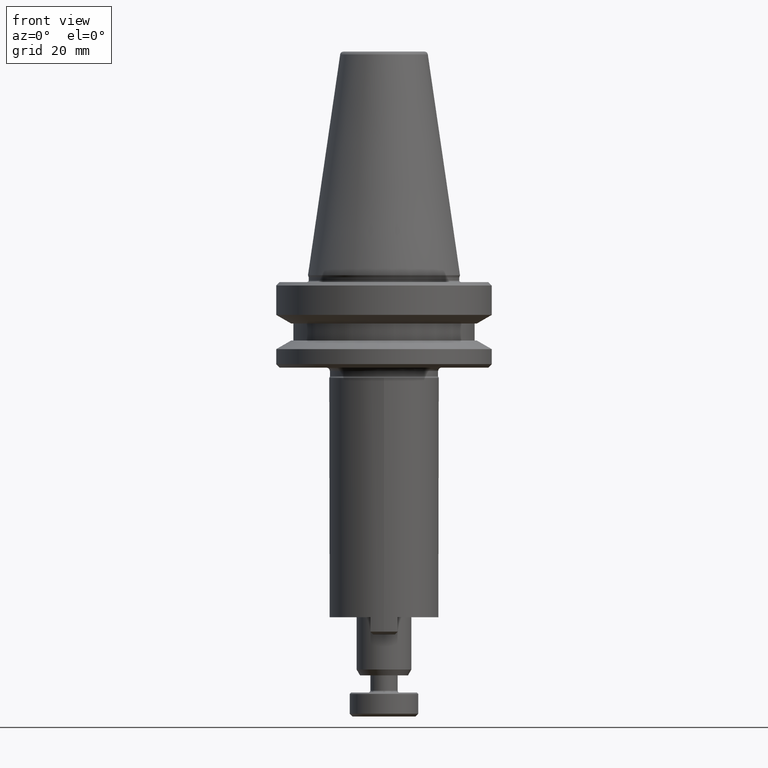
[diagram: clean part render]
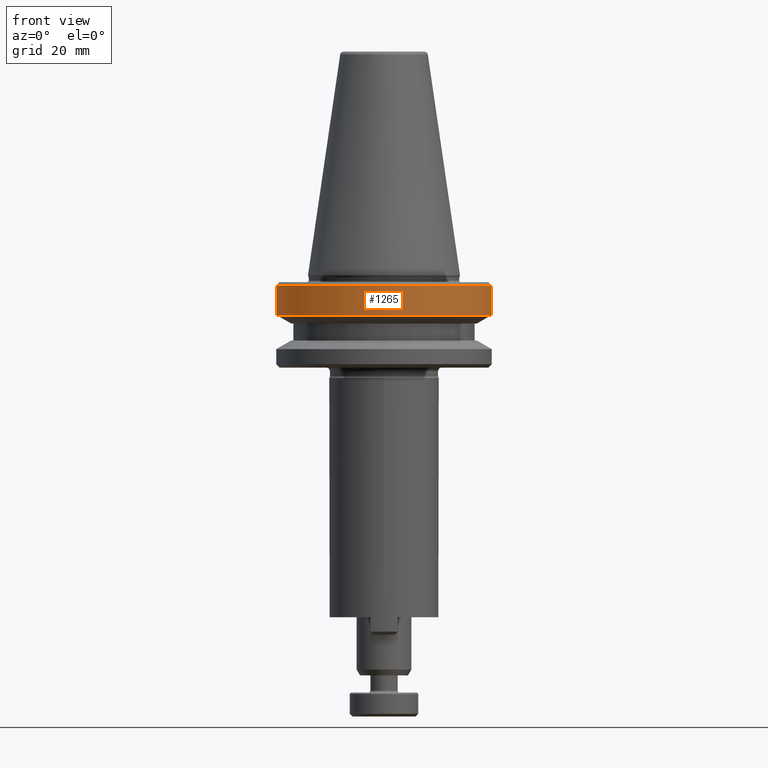
[diagram: same view with one face highlighted and labeled with its STEP entity id]
A machine part, front view. The second image highlights one B-rep face of the part: STEP entity #1265.
In plain terms, the highlighted cylindrical surface (partial cylindrical patch) has radius 31.5 mm, axis along (-0, -0, -1).
Its self-contained STEP definition (entity closure, byte-faithful):
#47 = DIRECTION ( 'NONE',  ( -0.0000000000000000000, -0.0000000000000000000, -1.000000000000000000 ) ) ;
#66 = CARTESIAN_POINT ( 'NONE',  ( 103.6964639303010100, 110.6694344999690100, -1.638959004981580800 ) ) ;
#154 = EDGE_LOOP ( 'NONE', ( #1866, #1949, #1252, #1196 ) ) ;
#247 = EDGE_CURVE ( 'NONE', #388, #427, #1482, .T. ) ;
#258 = DIRECTION ( 'NONE',  ( -0.0000000000000000000, -0.0000000000000000000, -1.000000000000000000 ) ) ;
#388 = VERTEX_POINT ( 'NONE', #584 ) ;
#427 = VERTEX_POINT ( 'NONE', #1208 ) ;
#485 = VECTOR ( 'NONE', #258, 1000.000000000000000 ) ;
#507 = CARTESIAN_POINT ( 'NONE',  ( 72.19646393566456800, 110.6694344999690100, -1.638959004981580800 ) ) ;
#528 = EDGE_CURVE ( 'NONE', #388, #814, #2287, .T. ) ;
#542 = DIRECTION ( 'NONE',  ( -1.000000000000000000, 0.0000000000000000000, 0.0000000000000000000 ) ) ;
#584 = CARTESIAN_POINT ( 'NONE',  ( 135.1964639249374600, 110.6694344999690100, 124.3610409950168600 ) ) ;
#585 = DIRECTION ( 'NONE',  ( -0.0000000000000000000, -0.0000000000000000000, -1.000000000000000000 ) ) ;
#814 = VERTEX_POINT ( 'NONE', #1848 ) ;
#966 = VERTEX_POINT ( 'NONE', #1374 ) ;
#1034 = DIRECTION ( 'NONE',  ( -0.0000000000000000000, -0.0000000000000000000, -1.000000000000000000 ) ) ;
#1039 = EDGE_CURVE ( 'NONE', #814, #966, #1771, .T. ) ;
#1093 = DIRECTION ( 'NONE',  ( -1.000000000000000000, 0.0000000000000000000, 0.0000000000000000000 ) ) ;
#1196 = ORIENTED_EDGE ( 'NONE', *, *, #1756, .F. ) ;
#1208 = CARTESIAN_POINT ( 'NONE',  ( 135.1964639249374600, 110.6694344999690100, 115.7611830013336300 ) ) ;
#1220 = CIRCLE ( 'NONE', #1776, 31.49999999463644300 ) ;
#1252 = ORIENTED_EDGE ( 'NONE', *, *, #1039, .T. ) ;
#1265 = ADVANCED_FACE ( 'NONE', ( #1499 ), #1746, .T. ) ;
#1301 = VECTOR ( 'NONE', #1034, 1000.000000000000000 ) ;
#1374 = CARTESIAN_POINT ( 'NONE',  ( 72.19646393566456800, 110.6694344999690100, 115.7611830013336300 ) ) ;
#1430 = CARTESIAN_POINT ( 'NONE',  ( 135.1964639249374600, 110.6694344999690100, -1.638959004981580800 ) ) ;
#1444 = CARTESIAN_POINT ( 'NONE',  ( 103.6964639303010100, 110.6694344999690100, 115.7611830013336300 ) ) ;
#1482 = LINE ( 'NONE', #1430, #485 ) ;
#1499 = FACE_OUTER_BOUND ( 'NONE', #154, .T. ) ;
#1566 = CARTESIAN_POINT ( 'NONE',  ( 103.6964639303010100, 110.6694344999690100, 124.3610409950168600 ) ) ;
#1746 = CYLINDRICAL_SURFACE ( 'NONE', #1908, 31.49999999463644300 ) ;
#1756 = EDGE_CURVE ( 'NONE', #427, #966, #1220, .T. ) ;
#1771 = LINE ( 'NONE', #507, #1301 ) ;
#1776 = AXIS2_PLACEMENT_3D ( 'NONE', #1444, #47, #1093 ) ;
#1848 = CARTESIAN_POINT ( 'NONE',  ( 72.19646393566456800, 110.6694344999690100, 124.3610409950168600 ) ) ;
#1866 = ORIENTED_EDGE ( 'NONE', *, *, #247, .F. ) ;
#1908 = AXIS2_PLACEMENT_3D ( 'NONE', #66, #585, #2258 ) ;
#1922 = DIRECTION ( 'NONE',  ( -0.0000000000000000000, -0.0000000000000000000, -1.000000000000000000 ) ) ;
#1949 = ORIENTED_EDGE ( 'NONE', *, *, #528, .T. ) ;
#2225 = AXIS2_PLACEMENT_3D ( 'NONE', #1566, #1922, #542 ) ;
#2258 = DIRECTION ( 'NONE',  ( -1.000000000000000000, 0.0000000000000000000, 0.0000000000000000000 ) ) ;
#2287 = CIRCLE ( 'NONE', #2225, 31.49999999463644300 ) ;